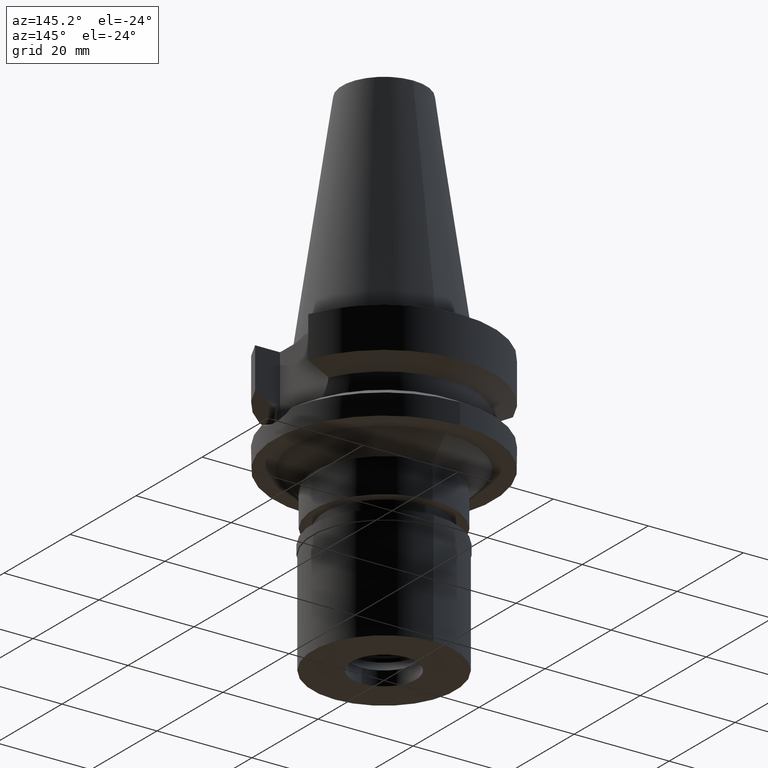
[diagram: clean part render]
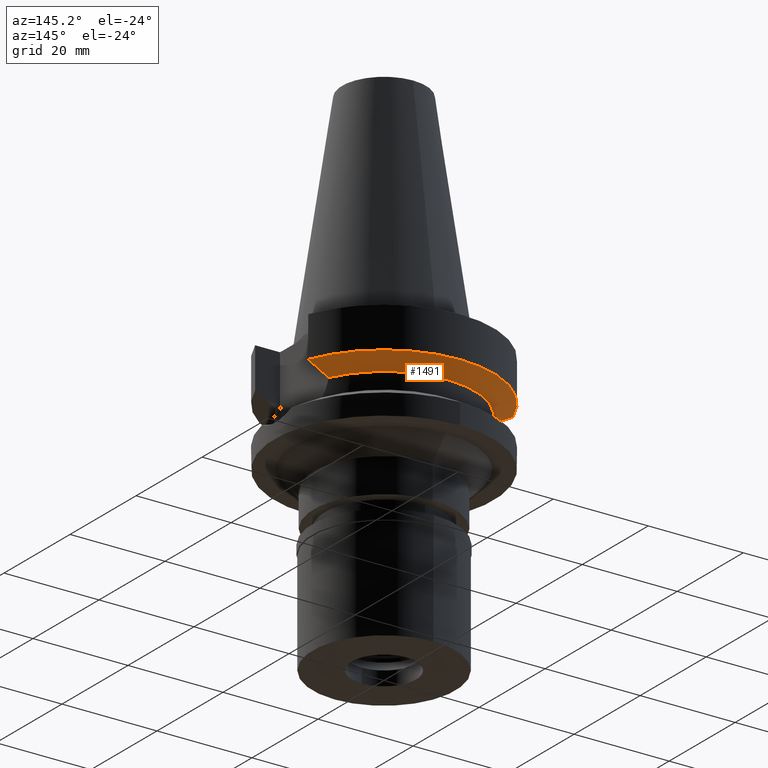
[diagram: same view with one face highlighted and labeled with its STEP entity id]
A machine part, auxiliary view. The second image highlights one B-rep face of the part: STEP entity #1491.
In plain terms, the highlighted conical surface has half-angle 60 deg.
Its self-contained STEP definition (entity closure, byte-faithful):
#4 = VERTEX_POINT ( 'NONE', #1961 ) ;
#73 = CARTESIAN_POINT ( 'NONE',  ( -21.54524231189000005, 8.050002094537999753, -9.567194606710000215 ) ) ;
#88 = CARTESIAN_POINT ( 'NONE',  ( -19.78176599729542318, 8.050001299788604570, -10.51717224217189006 ) ) ;
#104 = CARTESIAN_POINT ( 'NONE',  ( 0.0000000000000000000, 1.093341284896999988E-14, -11.87660944646999894 ) ) ;
#105 = CARTESIAN_POINT ( 'NONE',  ( 17.23531622907000482, 7.996491146279001150, -11.87660607779999999 ) ) ;
#167 = AXIS2_PLACEMENT_3D ( 'NONE', #104, #2829, #1473 ) ;
#319 = CARTESIAN_POINT ( 'NONE',  ( 20.64098922513855783, 8.049999155450747068, -10.05625859774404773 ) ) ;
#336 = FACE_OUTER_BOUND ( 'NONE', #967, .T. ) ;
#360 = EDGE_CURVE ( 'NONE', #1741, #527, #1600, .T. ) ;
#379 = CARTESIAN_POINT ( 'NONE',  ( 17.72598986851142300, 8.027133616167654750, -11.61218197892570814 ) ) ;
#450 = EDGE_CURVE ( 'NONE', #4, #871, #2421, .T. ) ;
#453 = EDGE_CURVE ( 'NONE', #2617, #869, #1779, .T. ) ;
#478 = B_SPLINE_CURVE_WITH_KNOTS ( 'NONE', 3,
 ( #2833, #319, #2865, #1675 ),
 .UNSPECIFIED., .F., .F.,
 ( 4, 4 ),
 ( 0.0000000000000000000, 1.000000000000000000 ),
 .UNSPECIFIED. ) ;
#500 = B_SPLINE_CURVE_WITH_KNOTS ( 'NONE', 3,
 ( #2575, #88, #1186, #73 ),
 .UNSPECIFIED., .F., .F.,
 ( 4, 4 ),
 ( 0.0000000000000000000, 1.000000000000000000 ),
 .UNSPECIFIED. ) ;
#527 = VERTEX_POINT ( 'NONE', #2661 ) ;
#740 = CARTESIAN_POINT ( 'NONE',  ( -17.23531135312000018, 7.996501749183000385, -11.87660739350999961 ) ) ;
#746 = EDGE_CURVE ( 'NONE', #527, #4, #1066, .T. ) ;
#801 = ORIENTED_EDGE ( 'NONE', *, *, #746, .F. ) ;
#869 = VERTEX_POINT ( 'NONE', #1772 ) ;
#871 = VERTEX_POINT ( 'NONE', #2883 ) ;
#919 = ORIENTED_EDGE ( 'NONE', *, *, #450, .F. ) ;
#967 = EDGE_LOOP ( 'NONE', ( #1622, #2251, #919, #801, #1499, #2367 ) ) ;
#1023 = DIRECTION ( 'NONE',  ( 0.0000000000000000000, 0.0000000000000000000, 1.000000000000000000 ) ) ;
#1066 = CIRCLE ( 'NONE', #167, 19.00000000000000000 ) ;
#1071 = CARTESIAN_POINT ( 'NONE',  ( 18.30334768058808592, 8.049999956193227391, -11.30291651749210047 ) ) ;
#1186 = CARTESIAN_POINT ( 'NONE',  ( -20.64102060459518384, 8.050004185766360010, -10.05624058887162064 ) ) ;
#1190 = CARTESIAN_POINT ( 'NONE',  ( -18.96736186674000280, 8.050001277723000115, -10.94999977542999936 ) ) ;
#1247 = CARTESIAN_POINT ( 'NONE',  ( 0.0000000000000000000, 1.093341284896999988E-14, -10.72190890808999875 ) ) ;
#1269 = EDGE_CURVE ( 'NONE', #1741, #869, #500, .T. ) ;
#1307 = AXIS2_PLACEMENT_3D ( 'NONE', #1247, #1023, #1927 ) ;
#1464 = CARTESIAN_POINT ( 'NONE',  ( -17.72682660869344318, 8.027186147106217362, -11.61172866858264996 ) ) ;
#1473 = DIRECTION ( 'NONE',  ( 0.0000000000000000000, 1.000000000000000000, 0.0000000000000000000 ) ) ;
#1491 = ADVANCED_FACE ( 'NONE', ( #336 ), #2451, .T. ) ;
#1499 = ORIENTED_EDGE ( 'NONE', *, *, #360, .F. ) ;
#1600 = B_SPLINE_CURVE_WITH_KNOTS ( 'NONE', 3,
 ( #1190, #1684, #1464, #740 ),
 .UNSPECIFIED., .F., .F.,
 ( 4, 4 ),
 ( 0.0000000000000000000, 1.000000000000000000 ),
 .UNSPECIFIED. ) ;
#1622 = ORIENTED_EDGE ( 'NONE', *, *, #453, .F. ) ;
#1675 = CARTESIAN_POINT ( 'NONE',  ( 18.96738966530000070, 8.049994318182998043, -10.95000099923000114 ) ) ;
#1684 = CARTESIAN_POINT ( 'NONE',  ( -18.30417677990011072, 8.050000009832551484, -11.30245973681163463 ) ) ;
#1741 = VERTEX_POINT ( 'NONE', #2473 ) ;
#1772 = CARTESIAN_POINT ( 'NONE',  ( -21.54524231189000005, 8.050002094537999753, -9.567194606710000215 ) ) ;
#1779 = CIRCLE ( 'NONE', #2843, 23.00000000000000000 ) ;
#1927 = DIRECTION ( 'NONE',  ( 0.0000000000000000000, 1.000000000000000000, 0.0000000000000000000 ) ) ;
#1948 = CARTESIAN_POINT ( 'NONE',  ( 18.96738966530000070, 8.049994318182998043, -10.95000099923000114 ) ) ;
#1961 = CARTESIAN_POINT ( 'NONE',  ( 17.23531622907000482, 7.996491146279001150, -11.87660607779999999 ) ) ;
#1963 = CARTESIAN_POINT ( 'NONE',  ( 0.0000000000000000000, 1.093341284896999988E-14, -9.567208369710998639 ) ) ;
#2134 = EDGE_CURVE ( 'NONE', #2617, #871, #478, .T. ) ;
#2251 = ORIENTED_EDGE ( 'NONE', *, *, #2134, .T. ) ;
#2367 = ORIENTED_EDGE ( 'NONE', *, *, #1269, .T. ) ;
#2421 = B_SPLINE_CURVE_WITH_KNOTS ( 'NONE', 3,
 ( #105, #379, #1071, #1948 ),
 .UNSPECIFIED., .F., .F.,
 ( 4, 4 ),
 ( 0.0000000000000000000, 1.000000000000000000 ),
 .UNSPECIFIED. ) ;
#2451 = CONICAL_SURFACE ( 'NONE', #1307, 21.00000000000000000, 1.047197551196400456 ) ;
#2473 = CARTESIAN_POINT ( 'NONE',  ( -18.96736186674000280, 8.050001277723000115, -10.94999977542999936 ) ) ;
#2575 = CARTESIAN_POINT ( 'NONE',  ( -18.96736186674000280, 8.050001277723000115, -10.94999977542999936 ) ) ;
#2617 = VERTEX_POINT ( 'NONE', #2791 ) ;
#2661 = CARTESIAN_POINT ( 'NONE',  ( -17.23531135312000018, 7.996501749183000385, -11.87660739350999961 ) ) ;
#2791 = CARTESIAN_POINT ( 'NONE',  ( 21.54524325238000060, 8.049999577379001181, -9.567211146543000311 ) ) ;
#2829 = DIRECTION ( 'NONE',  ( 0.0000000000000000000, 0.0000000000000000000, -1.000000000000000000 ) ) ;
#2833 = CARTESIAN_POINT ( 'NONE',  ( 21.54524325238000060, 8.049999577379001181, -9.567211146543000311 ) ) ;
#2843 = AXIS2_PLACEMENT_3D ( 'NONE', #1963, #2846, #2872 ) ;
#2846 = DIRECTION ( 'NONE',  ( 0.0000000000000000000, 0.0000000000000000000, 1.000000000000000000 ) ) ;
#2865 = CARTESIAN_POINT ( 'NONE',  ( 19.78174442298432112, 8.049991903556993122, -10.51718567366341972 ) ) ;
#2872 = DIRECTION ( 'NONE',  ( 0.0000000000000000000, 1.000000000000000000, 0.0000000000000000000 ) ) ;
#2883 = CARTESIAN_POINT ( 'NONE',  ( 18.96738966530000070, 8.049994318182998043, -10.95000099923000114 ) ) ;